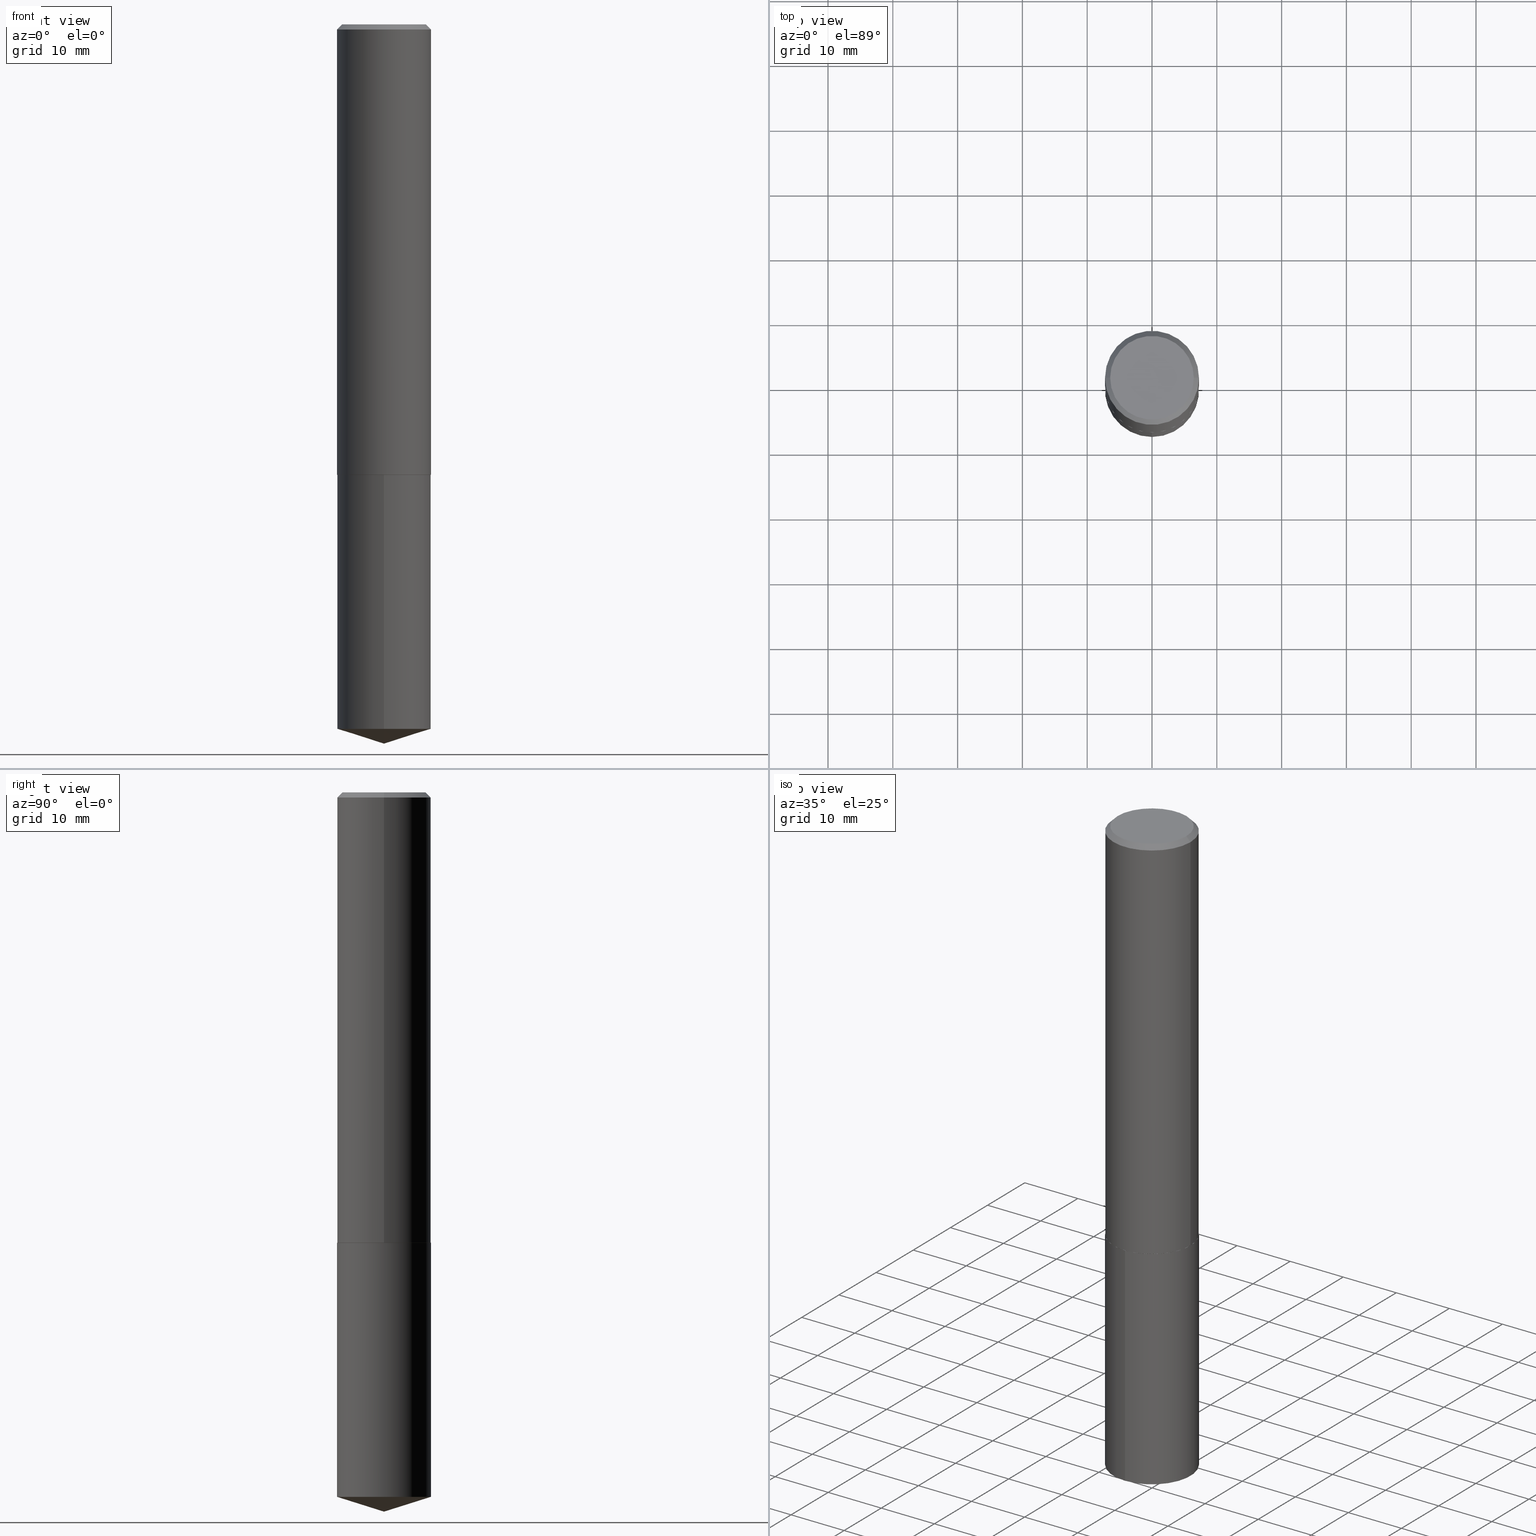
[diagram: canonical four-view strip — front | top / right | iso, engineering-drawing reading convention]
A machine part, canonical four-view strip (front | top / right | iso — engineering-drawing reading convention). The complete STEP part file that produces these views, byte-faithful:
ISO-10303-21;
HEADER;
FILE_DESCRIPTION (( 'STEP AP203' ),
    '1' );
FILE_NAME ('68611.STEP',
    '2024-04-23T13:19:27',
    ( '' ),
    ( '' ),
    'SwSTEP 2.0',
    'SolidWorks 2023',
    '' );
FILE_SCHEMA (( 'CONFIG_CONTROL_DESIGN' ));
ENDSEC;

DATA;
#1 = PERSON_AND_ORGANIZATION ( #80, #202 ) ;
#2 = DIRECTION ( 'NONE',  ( -2.445468806185136877E-29, 3.491481338843145188E-15, 1.000000000000000000 ) ) ;
#3 = DATE_TIME_ROLE ( 'creation_date' ) ;
#4 = EDGE_LOOP ( 'NONE', ( #9, #19, #51 ) ) ;
#5 = PERSON_AND_ORGANIZATION ( #80, #202 ) ;
#6 = LINE ( 'NONE', #125, #205 ) ;
#7 = COORDINATED_UNIVERSAL_TIME_OFFSET ( 5, 0, .BEHIND. ) ;
#8 = ORIENTED_EDGE ( 'NONE', *, *, #308, .F. ) ;
#9 = ORIENTED_EDGE ( 'NONE', *, *, #285, .F. ) ;
#10 = CARTESIAN_POINT ( 'NONE',  ( 6.691536294364390280E-29, -9.553740387476499873E-15, -2.736299999999999955 ) ) ;
#11 = CIRCLE ( 'NONE', #330, 0.2854500000000003146 ) ;
#12 = DIRECTION ( 'NONE',  ( -2.445468806185136597E-29, 3.491481338843145583E-15, 1.000000000000000000 ) ) ;
#13 = APPROVAL ( #27, 'UNSPECIFIED' ) ;
#14 = FACE_OUTER_BOUND ( 'NONE', #160, .T. ) ;
#15 = DIRECTION ( 'NONE',  ( 0.7071067811865452413, -7.319954787623248157E-15, -0.7071067811865497932 ) ) ;
#16 = DIRECTION ( 'NONE',  ( -2.445654948928403748E-29, 3.491214771840200006E-15, 1.000000000000000000 ) ) ;
#17 =( LENGTH_UNIT ( ) NAMED_UNIT ( * ) SI_UNIT ( $, .METRE. ) );
#18 = EDGE_CURVE ( 'NONE', #118, #180, #215, .T. ) ;
#19 = ORIENTED_EDGE ( 'NONE', *, *, #18, .T. ) ;
#20 =( CONVERSION_BASED_UNIT ( 'INCH', #52 ) LENGTH_UNIT ( ) NAMED_UNIT ( #264 ) );
#21 = EDGE_LOOP ( 'NONE', ( #182, #150, #38, #98 ) ) ;
#22 = LOCAL_TIME ( 9, 19, 27.00000000000000000, #34 ) ;
#23 = CARTESIAN_POINT ( 'NONE',  ( 7.642090019328602662E-31, -1.091087918388490267E-16, -0.03125000000000020817 ) ) ;
#24 = VERTEX_POINT ( 'NONE', #120 ) ;
#25 = ADVANCED_FACE ( 'NONE', ( #272 ), #225, .T. ) ;
#26 = DIRECTION ( 'NONE',  ( 2.445468806185136597E-29, -3.491481338843145583E-15, -1.000000000000000000 ) ) ;
#27 = APPROVAL_STATUS ( 'not_yet_approved' ) ;
#28 = AXIS2_PLACEMENT_3D ( 'NONE', #103, #254, #72 ) ;
#29 = CC_DESIGN_APPROVAL ( #13, ( #136 ) ) ;
#30 = ORIENTED_EDGE ( 'NONE', *, *, #223, .T. ) ;
#31 = PERSON_AND_ORGANIZATION ( #80, #202 ) ;
#32 = ORIENTED_EDGE ( 'NONE', *, *, #278, .T. ) ;
#33 = EDGE_CURVE ( 'NONE', #217, #259, #107, .T. ) ;
#34 = COORDINATED_UNIVERSAL_TIME_OFFSET ( 5, 0, .BEHIND. ) ;
#35 = CARTESIAN_POINT ( 'NONE',  ( 1.068776562497505041E-28, -1.525695767441885775E-14, -4.370099999999999874 ) ) ;
#36 = AXIS2_PLACEMENT_3D ( 'NONE', #371, #275, #343 ) ;
#37 = DIRECTION ( 'NONE',  ( 1.000000000000000000, -6.982962677686266711E-15, 4.876211886893936302E-29 ) ) ;
#38 = ORIENTED_EDGE ( 'NONE', *, *, #223, .F. ) ;
#39 = DIRECTION ( 'NONE',  ( 1.000000000000000000, -6.982962677686265922E-15, 0.000000000000000000 ) ) ;
#40 = DIRECTION ( 'NONE',  ( -2.445468806185136877E-29, 3.491481338843145188E-15, 1.000000000000000000 ) ) ;
#41 = CLOSED_SHELL ( 'NONE', ( #25, #256, #198, #110, #156, #213, #321, #246 ) ) ;
#42 = APPROVAL_PERSON_ORGANIZATION ( #274, #115, #304 ) ;
#43 = DIRECTION ( 'NONE',  ( -2.445654948928403748E-29, 3.491214771840200006E-15, 1.000000000000000000 ) ) ;
#44 = DIRECTION ( 'NONE',  ( -2.445468806185136597E-29, 3.491481338843145583E-15, 1.000000000000000000 ) ) ;
#45 = DIRECTION ( 'NONE',  ( -2.445468806185136597E-29, 3.491481338843145583E-15, 1.000000000000000000 ) ) ;
#46 = CONICAL_SURFACE ( 'NONE', #144, 0.2854499999999999815, 0.7853981633974450594 ) ;
#47 = CC_DESIGN_PERSON_AND_ORGANIZATION_ASSIGNMENT ( #1, #121, ( #303 ) ) ;
#48 = DIRECTION ( 'NONE',  ( -0.7071067811870787034, 7.493145998872274248E-15, 0.7071067811860163310 ) ) ;
#49 = ORIENTED_EDGE ( 'NONE', *, *, #334, .T. ) ;
#50 = LINE ( 'NONE', #293, #220 ) ;
#51 = ORIENTED_EDGE ( 'NONE', *, *, #362, .F. ) ;
#52 = LENGTH_MEASURE_WITH_UNIT ( LENGTH_MEASURE( 0.02539999999999999897 ), #17 );
#53 = ORIENTED_EDGE ( 'NONE', *, *, #355, .F. ) ;
#54 = CC_DESIGN_PERSON_AND_ORGANIZATION_ASSIGNMENT ( #149, #218, ( #126 ) ) ;
#55 = CIRCLE ( 'NONE', #151, 0.2849500000000004807 ) ;
#56 = CYLINDRICAL_SURFACE ( 'NONE', #232, 0.2854500000000001481 ) ;
#57 = CARTESIAN_POINT ( 'NONE',  ( -8.559838056064346583E-28, 1.221917133844405914E-13, 34.99997874015748067 ) ) ;
#58 = DATE_AND_TIME ( #245, #22 ) ;
#59 = CARTESIAN_POINT ( 'NONE',  ( -0.2854500000000001481, 2.028244239227207033E-15, -1.404110021513263625E-29 ) ) ;
#60 = VECTOR ( 'NONE', #40, 39.37007874015748143 ) ;
#61 = EDGE_CURVE ( 'NONE', #180, #328, #210, .T. ) ;
#62 = APPLICATION_PROTOCOL_DEFINITION ( 'international standard', 'config_control_design', 1994, #273 ) ;
#63 = DESIGN_CONTEXT ( 'detailed design', #273, 'design' ) ;
#64 = DIRECTION ( 'NONE',  ( 2.445468806185136597E-29, -3.491481338843145583E-15, -1.000000000000000000 ) ) ;
#65 = PERSON_AND_ORGANIZATION_ROLE ( 'creator' ) ;
#66 = EDGE_LOOP ( 'NONE', ( #93, #206, #32, #147 ) ) ;
#67 = ORIENTED_EDGE ( 'NONE', *, *, #316, .F. ) ;
#68 = CC_DESIGN_PERSON_AND_ORGANIZATION_ASSIGNMENT ( #269, #69, ( #303 ) ) ;
#69 = PERSON_AND_ORGANIZATION_ROLE ( 'creator' ) ;
#70 = AXIS2_PLACEMENT_3D ( 'NONE', #381, #45, #75 ) ;
#71 = ORIENTED_EDGE ( 'NONE', *, *, #33, .F. ) ;
#72 = DIRECTION ( 'NONE',  ( 1.000000000000000000, -6.982962677686265922E-15, 4.876176775795935793E-29 ) ) ;
#73 = FACE_OUTER_BOUND ( 'NONE', #91, .T. ) ;
#74 = ADVANCED_FACE ( 'NONE', ( #314 ), #100, .T. ) ;
#75 = DIRECTION ( 'NONE',  ( 1.000000000000000000, -6.982962677686265922E-15, 0.000000000000000000 ) ) ;
#76 = FACE_OUTER_BOUND ( 'NONE', #279, .T. ) ;
#77 = FACE_OUTER_BOUND ( 'NONE', #4, .T. ) ;
#78 = EDGE_CURVE ( 'NONE', #204, #159, #6, .T. ) ;
#79 = DIRECTION ( 'NONE',  ( 1.000000000000000000, -6.982962677686265133E-15, 0.000000000000000000 ) ) ;
#80 = PERSON ( 'UNSPECIFIED', 'UNSPECIFIED', 'UNSPECIFIED', ('UNSPECIFIED'), ('UNSPECIFIED'), ('UNSPECIFIED') ) ;
#81 = AXIS2_PLACEMENT_3D ( 'NONE', #190, #311, #37 ) ;
#82 = VECTOR ( 'NONE', #388, 39.37007874015748143 ) ;
#83 = FACE_OUTER_BOUND ( 'NONE', #368, .T. ) ;
#84 = DIRECTION ( 'NONE',  ( 1.000000000000000000, -6.982962677686267499E-15, 0.000000000000000000 ) ) ;
#85 = ORIENTED_EDGE ( 'NONE', *, *, #161, .T. ) ;
#86 = DIRECTION ( 'NONE',  ( -2.445468806185136597E-29, 3.491481338843145583E-15, 1.000000000000000000 ) ) ;
#87 = CIRCLE ( 'NONE', #81, 0.2541999999999999815 ) ;
#88 =( GEOMETRIC_REPRESENTATION_CONTEXT ( 3 ) GLOBAL_UNCERTAINTY_ASSIGNED_CONTEXT ( ( #345 ) ) GLOBAL_UNIT_ASSIGNED_CONTEXT ( ( #20, #143, #363 ) ) REPRESENTATION_CONTEXT ( 'NONE', 'WORKASPACE' ) );
#89 = DIRECTION ( 'NONE',  ( -6.982962677686265133E-15, -1.000000000000000000, 3.500519750498698121E-15 ) ) ;
#90 = CARTESIAN_POINT ( 'NONE',  ( 0.000000000000000000, 0.000000000000000000, 0.000000000000000000 ) ) ;
#91 = EDGE_LOOP ( 'NONE', ( #294, #67 ) ) ;
#92 = EDGE_CURVE ( 'NONE', #259, #217, #87, .T. ) ;
#93 = ORIENTED_EDGE ( 'NONE', *, *, #61, .F. ) ;
#94 = CC_DESIGN_SECURITY_CLASSIFICATION ( #338, ( #303 ) ) ;
#95 = PERSON_AND_ORGANIZATION_ROLE ( 'classification_officer' ) ;
#96 = CC_DESIGN_APPROVAL ( #115, ( #338 ) ) ;
#97 = VERTEX_POINT ( 'NONE', #336 ) ;
#98 = ORIENTED_EDGE ( 'NONE', *, *, #132, .F. ) ;
#99 = DIRECTION ( 'NONE',  ( 0.000000000000000000, 0.000000000000000000, 1.000000000000000000 ) ) ;
#100 = CYLINDRICAL_SURFACE ( 'NONE', #36, 0.2854499999999999815 ) ;
#101 = AXIS2_PLACEMENT_3D ( 'NONE', #146, #201, #171 ) ;
#102 = PLANE ( 'NONE',  #365 ) ;
#103 = CARTESIAN_POINT ( 'NONE',  ( 1.035524803460187563E-28, -4.307096649934111899E-15, -2.736299999999999510 ) ) ;
#104 = EDGE_CURVE ( 'NONE', #300, #24, #219, .T. ) ;
#105 = CARTESIAN_POINT ( 'NONE',  ( 6.691536294364390280E-29, -9.553740387476499873E-15, -2.736299999999999955 ) ) ;
#106 = CARTESIAN_POINT ( 'NONE',  ( 0.2854499999999999815, -2.102395488184393662E-15, -0.03125000000000020817 ) ) ;
#107 = CIRCLE ( 'NONE', #347, 0.2541999999999999815 ) ;
#108 = CIRCLE ( 'NONE', #70, 0.2854499999999999815 ) ;
#109 = CARTESIAN_POINT ( 'NONE',  ( 0.2849500000000004807, -1.154353560248320143E-14, -2.736299999999999066 ) ) ;
#110 = ADVANCED_FACE ( 'NONE', ( #73 ), #250, .F. ) ;
#111 = LINE ( 'NONE', #261, #226 ) ;
#112 = ORIENTED_EDGE ( 'NONE', *, *, #308, .T. ) ;
#113 = ORIENTED_EDGE ( 'NONE', *, *, #61, .T. ) ;
#114 = FACE_OUTER_BOUND ( 'NONE', #21, .T. ) ;
#115 = APPROVAL ( #181, 'UNSPECIFIED' ) ;
#116 = CIRCLE ( 'NONE', #367, 0.2849500000000004807 ) ;
#117 = APPROVAL_DATE_TIME ( #390, #115 ) ;
#118 = VERTEX_POINT ( 'NONE', #281 ) ;
#119 = EDGE_CURVE ( 'NONE', #328, #97, #282, .T. ) ;
#120 = CARTESIAN_POINT ( 'NONE',  ( -0.2854499999999999815, -2.802307480095755519E-15, -0.03125000000000020817 ) ) ;
#121 = PERSON_AND_ORGANIZATION_ROLE ( 'design_supplier' ) ;
#122 = VERTEX_POINT ( 'NONE', #106 ) ;
#123 = VECTOR ( 'NONE', #155, 39.37007874015748143 ) ;
#124 = ADVANCED_FACE ( 'NONE', ( #162 ), #379, .T. ) ;
#125 = CARTESIAN_POINT ( 'NONE',  ( 0.2854500000000003146, -1.154528134315262530E-14, -2.735799999999999788 ) ) ;
#126 = PRODUCT ( '68611', '68611', '', ( #339 ) ) ;
#127 = DIRECTION ( 'NONE',  ( -2.445468806185136597E-29, 3.491481338843145583E-15, 1.000000000000000000 ) ) ;
#128 = PLANE ( 'NONE',  #196 ) ;
#129 = CIRCLE ( 'NONE', #231, 0.2854499999999999815 ) ;
#130 = VECTOR ( 'NONE', #208, 39.37007874015748143 ) ;
#131 = CARTESIAN_POINT ( 'NONE',  ( 0.2854500000000003146, -1.154528134315262530E-14, -2.735799999999999788 ) ) ;
#132 = EDGE_CURVE ( 'NONE', #159, #122, #194, .T. ) ;
#133 = ADVANCED_BREP_SHAPE_REPRESENTATION ( '68611', ( #382, #384, #177 ), #88 ) ;
#134 = DIRECTION ( 'NONE',  ( 1.000000000000000000, -6.982962677686265922E-15, 4.876176775795936353E-29 ) ) ;
#135 = DIRECTION ( 'NONE',  ( 2.445654948928403468E-29, -3.491214771840200006E-15, -1.000000000000000000 ) ) ;
#136 = PRODUCT_DEFINITION ( 'UNKNOWN', '', #303, #63 ) ;
#137 = CARTESIAN_POINT ( 'NONE',  ( 0.000000000000000000, 0.000000000000000000, 0.000000000000000000 ) ) ;
#138 = AXIS2_PLACEMENT_3D ( 'NONE', #228, #375, #291 ) ;
#139 = AXIS2_PLACEMENT_3D ( 'NONE', #137, #12, #134 ) ;
#140 = CARTESIAN_POINT ( 'NONE',  ( 6.690313559961295236E-29, -9.551994646807077580E-15, -2.735799999999999788 ) ) ;
#141 = DIRECTION ( 'NONE',  ( 1.000000000000000000, -6.982962677686265922E-15, 4.876176775795936353E-29 ) ) ;
#142 = ORIENTED_EDGE ( 'NONE', *, *, #78, .T. ) ;
#143 =( NAMED_UNIT ( * ) PLANE_ANGLE_UNIT ( ) SI_UNIT ( $, .RADIAN. ) );
#144 = AXIS2_PLACEMENT_3D ( 'NONE', #23, #26, #255 ) ;
#145 = ADVANCED_FACE ( 'NONE', ( #14 ), #102, .F. ) ;
#146 = CARTESIAN_POINT ( 'NONE',  ( 1.046713341713137297E-28, -1.494347063265972236E-14, -4.280097960714495109 ) ) ;
#147 = ORIENTED_EDGE ( 'NONE', *, *, #119, .F. ) ;
#148 = APPLICATION_CONTEXT ( 'configuration controlled 3d designs of mechanical parts and assemblies' ) ;
#149 = PERSON_AND_ORGANIZATION ( #80, #202 ) ;
#150 = ORIENTED_EDGE ( 'NONE', *, *, #104, .T. ) ;
#151 = AXIS2_PLACEMENT_3D ( 'NONE', #168, #222, #356 ) ;
#152 = APPROVAL_DATE_TIME ( #310, #13 ) ;
#153 = EDGE_LOOP ( 'NONE', ( #188, #174 ) ) ;
#154 = COORDINATED_UNIVERSAL_TIME_OFFSET ( 5, 0, .BEHIND. ) ;
#155 = DIRECTION ( 'NONE',  ( 6.776566513254257349E-15, 0.9537169507482289310, 0.3007057995042667353 ) ) ;
#156 = ADVANCED_FACE ( 'NONE', ( #76 ), #359, .T. ) ;
#157 = DIRECTION ( 'NONE',  ( -1.000000000000000000, 6.982962677686265922E-15, 0.000000000000000000 ) ) ;
#158 = SECURITY_CLASSIFICATION_LEVEL ( 'unclassified' ) ;
#159 = VERTEX_POINT ( 'NONE', #131 ) ;
#160 = EDGE_LOOP ( 'NONE', ( #85, #244 ) ) ;
#161 = EDGE_CURVE ( 'NONE', #97, #328, #129, .T. ) ;
#162 = FACE_OUTER_BOUND ( 'NONE', #211, .T. ) ;
#163 = CIRCLE ( 'NONE', #313, 0.2854499999999999815 ) ;
#164 = APPROVAL_PERSON_ORGANIZATION ( #335, #13, #216 ) ;
#165 = FACE_OUTER_BOUND ( 'NONE', #209, .T. ) ;
#166 = CARTESIAN_POINT ( 'NONE',  ( -2.066436526677436908E-47, 2.950323697668913920E-33, 8.450062914116742878E-19 ) ) ;
#167 = EDGE_CURVE ( 'NONE', #24, #122, #163, .T. ) ;
#168 = CARTESIAN_POINT ( 'NONE',  ( 6.691536294364386916E-29, -9.553740387476496717E-15, -2.736299999999999066 ) ) ;
#169 = FACE_OUTER_BOUND ( 'NONE', #153, .T. ) ;
#170 = CIRCLE ( 'NONE', #101, 0.2854499999999999815 ) ;
#171 = DIRECTION ( 'NONE',  ( -6.982962677686265922E-15, -1.000000000000000000, 3.828128209723963046E-15 ) ) ;
#172 = ORIENTED_EDGE ( 'NONE', *, *, #78, .F. ) ;
#173 = CARTESIAN_POINT ( 'NONE',  ( 0.000000000000000000, 0.000000000000000000, 0.000000000000000000 ) ) ;
#174 = ORIENTED_EDGE ( 'NONE', *, *, #33, .T. ) ;
#175 = FACE_OUTER_BOUND ( 'NONE', #333, .T. ) ;
#176 = ORIENTED_EDGE ( 'NONE', *, *, #362, .T. ) ;
#177 = AXIS2_PLACEMENT_3D ( 'NONE', #90, #99, #271 ) ;
#178 = CARTESIAN_POINT ( 'NONE',  ( -0.2849500000000004807, -7.526399634753978988E-15, -2.736299999999999066 ) ) ;
#179 = CARTESIAN_POINT ( 'NONE',  ( 6.690313559961295236E-29, -9.551994646807077580E-15, -2.735799999999999788 ) ) ;
#180 = VERTEX_POINT ( 'NONE', #224 ) ;
#181 = APPROVAL_STATUS ( 'not_yet_approved' ) ;
#182 = ORIENTED_EDGE ( 'NONE', *, *, #289, .T. ) ;
#183 = AXIS2_PLACEMENT_3D ( 'NONE', #352, #199, #286 ) ;
#184 = LOCAL_TIME ( 9, 19, 27.00000000000000000, #7 ) ;
#185 = APPROVAL_STATUS ( 'not_yet_approved' ) ;
#186 = ORIENTED_EDGE ( 'NONE', *, *, #350, .T. ) ;
#187 = APPROVAL_ROLE ( '' ) ;
#188 = ORIENTED_EDGE ( 'NONE', *, *, #92, .T. ) ;
#189 = CALENDAR_DATE ( 2024, 23, 4 ) ;
#190 = CARTESIAN_POINT ( 'NONE',  ( -4.132873053354873817E-47, 5.900647395337827841E-33, 1.690012582823348576E-18 ) ) ;
#191 = CIRCLE ( 'NONE', #267, 0.2854500000000003146 ) ;
#192 = ORIENTED_EDGE ( 'NONE', *, *, #18, .F. ) ;
#193 = EDGE_CURVE ( 'NONE', #204, #280, #55, .T. ) ;
#194 = LINE ( 'NONE', #315, #60 ) ;
#195 = FACE_OUTER_BOUND ( 'NONE', #297, .T. ) ;
#196 = AXIS2_PLACEMENT_3D ( 'NONE', #166, #354, #248 ) ;
#197 = CARTESIAN_POINT ( 'NONE',  ( 6.691536294364390280E-29, -9.553740387476499873E-15, -2.736299999999999955 ) ) ;
#198 = ADVANCED_FACE ( 'NONE', ( #165 ), #277, .T. ) ;
#199 = DIRECTION ( 'NONE',  ( -2.445468806185136597E-29, 3.491481338843145583E-15, 1.000000000000000000 ) ) ;
#200 = CARTESIAN_POINT ( 'NONE',  ( -8.559838056064346583E-28, 1.221917133844405914E-13, 34.99997874015748067 ) ) ;
#201 = DIRECTION ( 'NONE',  ( -2.445654948928403748E-29, 3.491214771840200006E-15, 1.000000000000000000 ) ) ;
#202 = ORGANIZATION ( 'UNSPECIFIED', 'UNSPECIFIED', '' ) ;
#203 = LINE ( 'NONE', #234, #130 ) ;
#204 = VERTEX_POINT ( 'NONE', #109 ) ;
#205 = VECTOR ( 'NONE', #372, 39.37007874015748143 ) ;
#206 = ORIENTED_EDGE ( 'NONE', *, *, #355, .T. ) ;
#207 = EDGE_CURVE ( 'NONE', #217, #122, #351, .T. ) ;
#208 = DIRECTION ( 'NONE',  ( -2.445654948928403468E-29, 3.491214771840200006E-15, 1.000000000000000000 ) ) ;
#209 = EDGE_LOOP ( 'NONE', ( #364, #49, #238, #172 ) ) ;
#210 = LINE ( 'NONE', #374, #329 ) ;
#211 = EDGE_LOOP ( 'NONE', ( #176, #113, #387, #305 ) ) ;
#212 = AXIS2_PLACEMENT_3D ( 'NONE', #200, #43, #380 ) ;
#213 = ADVANCED_FACE ( 'NONE', ( #195 ), #252, .T. ) ;
#214 = COORDINATED_UNIVERSAL_TIME_OFFSET ( 5, 0, .BEHIND. ) ;
#215 = LINE ( 'NONE', #35, #123 ) ;
#216 = APPROVAL_ROLE ( '' ) ;
#217 = VERTEX_POINT ( 'NONE', #322 ) ;
#218 = PERSON_AND_ORGANIZATION_ROLE ( 'design_owner' ) ;
#219 = LINE ( 'NONE', #59, #312 ) ;
#220 = VECTOR ( 'NONE', #48, 39.37007874015748143 ) ;
#221 = DIRECTION ( 'NONE',  ( -2.445654948928403748E-29, 3.491214771840200006E-15, 1.000000000000000000 ) ) ;
#222 = DIRECTION ( 'NONE',  ( -2.445468806185136597E-29, 3.491481338843145583E-15, 1.000000000000000000 ) ) ;
#223 = EDGE_CURVE ( 'NONE', #122, #24, #108, .T. ) ;
#224 = CARTESIAN_POINT ( 'NONE',  ( 2.028244239227311162E-15, 0.2854499999999851600, -4.280097960714495997 ) ) ;
#225 = CONICAL_SURFACE ( 'NONE', #276, 0.2854499999999999815, 0.7853981633974450594 ) ;
#226 = VECTOR ( 'NONE', #383, 39.37007874015748854 ) ;
#227 = DIRECTION ( 'NONE',  ( -2.445654948928403748E-29, 3.491214771840200006E-15, 1.000000000000000000 ) ) ;
#228 = CARTESIAN_POINT ( 'NONE',  ( 6.691536294364390280E-29, -9.553740387476499873E-15, -2.736299999999999955 ) ) ;
#229 = CARTESIAN_POINT ( 'NONE',  ( 2.028244239227311162E-15, 0.2854499999999904891, -2.736300000000001287 ) ) ;
#230 = DIRECTION ( 'NONE',  ( -2.445654948928403748E-29, 3.491214771840200006E-15, 1.000000000000000000 ) ) ;
#231 = AXIS2_PLACEMENT_3D ( 'NONE', #105, #221, #378 ) ;
#232 = AXIS2_PLACEMENT_3D ( 'NONE', #173, #389, #141 ) ;
#233 = CC_DESIGN_PERSON_AND_ORGANIZATION_ASSIGNMENT ( #5, #65, ( #136 ) ) ;
#234 = CARTESIAN_POINT ( 'NONE',  ( -1.993286696345477508E-15, -0.2854500000000095294, -2.736299999999999066 ) ) ;
#235 = AXIS2_PLACEMENT_3D ( 'NONE', #319, #349, #287 ) ;
#236 = ORIENTED_EDGE ( 'NONE', *, *, #350, .F. ) ;
#237 = CALENDAR_DATE ( 2024, 23, 4 ) ;
#238 = ORIENTED_EDGE ( 'NONE', *, *, #289, .F. ) ;
#239 = ADVANCED_FACE ( 'NONE', ( #77 ), #290, .T. ) ;
#240 = PRODUCT_DEFINITION_SHAPE ( 'NONE', 'NONE',  #136 ) ;
#241 = SHAPE_DEFINITION_REPRESENTATION ( #240, #133 ) ;
#242 = DIRECTION ( 'NONE',  ( -2.445654948928403468E-29, 3.491214771840200006E-15, 1.000000000000000000 ) ) ;
#243 = CALENDAR_DATE ( 2024, 23, 4 ) ;
#244 = ORIENTED_EDGE ( 'NONE', *, *, #119, .T. ) ;
#245 = CALENDAR_DATE ( 2024, 23, 4 ) ;
#246 = ADVANCED_FACE ( 'NONE', ( #169 ), #128, .F. ) ;
#247 = DIRECTION ( 'NONE',  ( 1.000000000000000000, -6.982962677686266711E-15, 4.876211886893936302E-29 ) ) ;
#248 = DIRECTION ( 'NONE',  ( -1.000000000000000000, 6.982962677686265922E-15, -4.876176775795935793E-29 ) ) ;
#249 = LOCAL_TIME ( 9, 19, 27.00000000000000000, #214 ) ;
#250 = PLANE ( 'NONE',  #28 ) ;
#251 = DIRECTION ( 'NONE',  ( -6.982962677686265922E-15, -1.000000000000000000, 3.828128209723963046E-15 ) ) ;
#252 = CYLINDRICAL_SURFACE ( 'NONE', #139, 0.2854500000000001481 ) ;
#253 = VECTOR ( 'NONE', #15, 39.37007874015748143 ) ;
#254 = DIRECTION ( 'NONE',  ( -2.438088387897960049E-29, 3.491481338843145188E-15, 1.000000000000000000 ) ) ;
#255 = DIRECTION ( 'NONE',  ( -1.000000000000000000, 6.982962677686265922E-15, 0.000000000000000000 ) ) ;
#256 = ADVANCED_FACE ( 'NONE', ( #114 ), #56, .T. ) ;
#257 = DIRECTION ( 'NONE',  ( -2.445468806185136597E-29, 3.491481338843145583E-15, 1.000000000000000000 ) ) ;
#258 = LOCAL_TIME ( 9, 19, 27.00000000000000000, #154 ) ;
#259 = VERTEX_POINT ( 'NONE', #357 ) ;
#260 = APPROVAL ( #185, 'UNSPECIFIED' ) ;
#261 = CARTESIAN_POINT ( 'NONE',  ( 1.068673800753521436E-28, -1.525841648899917748E-14, -4.370099999999999874 ) ) ;
#262 = VERTEX_POINT ( 'NONE', #332 ) ;
#263 = APPLICATION_PROTOCOL_DEFINITION ( 'international standard', 'config_control_design', 1994, #148 ) ;
#264 = DIMENSIONAL_EXPONENTS ( 1.000000000000000000, 0.000000000000000000, 0.000000000000000000, 0.000000000000000000, 0.000000000000000000, 0.000000000000000000, 0.000000000000000000 ) ;
#265 = APPROVAL_DATE_TIME ( #301, #260 ) ;
#266 = ORIENTED_EDGE ( 'NONE', *, *, #92, .F. ) ;
#267 = AXIS2_PLACEMENT_3D ( 'NONE', #179, #257, #84 ) ;
#268 = CC_DESIGN_DATE_AND_TIME_ASSIGNMENT ( #58, #373, ( #338 ) ) ;
#269 = PERSON_AND_ORGANIZATION ( #80, #202 ) ;
#270 = CARTESIAN_POINT ( 'NONE',  ( 7.642090019328602662E-31, -1.091087918388490267E-16, -0.03125000000000020817 ) ) ;
#271 = DIRECTION ( 'NONE',  ( 1.000000000000000000, 0.000000000000000000, 0.000000000000000000 ) ) ;
#272 = FACE_OUTER_BOUND ( 'NONE', #358, .T. ) ;
#273 = APPLICATION_CONTEXT ( 'configuration controlled 3d designs of mechanical parts and assemblies' ) ;
#274 = PERSON_AND_ORGANIZATION ( #80, #202 ) ;
#275 = DIRECTION ( 'NONE',  ( -2.445654948928403748E-29, 3.491214771840200006E-15, 1.000000000000000000 ) ) ;
#276 = AXIS2_PLACEMENT_3D ( 'NONE', #270, #64, #157 ) ;
#277 = CONICAL_SURFACE ( 'NONE', #235, 0.2854500000000003146, 0.7853981633981995669 ) ;
#278 = EDGE_CURVE ( 'NONE', #262, #97, #203, .T. ) ;
#279 = EDGE_LOOP ( 'NONE', ( #361, #307, #142, #236 ) ) ;
#280 = VERTEX_POINT ( 'NONE', #178 ) ;
#281 = CARTESIAN_POINT ( 'NONE',  ( 1.068775669231201710E-28, -1.525695767441885775E-14, -4.370099999999999874 ) ) ;
#282 = CIRCLE ( 'NONE', #288, 0.2854499999999999815 ) ;
#283 = CC_DESIGN_APPROVAL ( #260, ( #303 ) ) ;
#284 = CARTESIAN_POINT ( 'NONE',  ( 0.2854499999999999815, -2.067437945302732768E-15, -0.03125000000000020817 ) ) ;
#285 = EDGE_CURVE ( 'NONE', #118, #262, #111, .T. ) ;
#286 = DIRECTION ( 'NONE',  ( 1.000000000000000000, -6.982962677686267499E-15, 0.000000000000000000 ) ) ;
#287 = DIRECTION ( 'NONE',  ( 1.000000000000000000, -6.982962677686267499E-15, 0.000000000000000000 ) ) ;
#288 = AXIS2_PLACEMENT_3D ( 'NONE', #197, #227, #251 ) ;
#289 = EDGE_CURVE ( 'NONE', #159, #300, #11, .T. ) ;
#290 = CONICAL_SURFACE ( 'NONE', #212, 124.8659371009152892, 1.265363707695892126 ) ;
#291 = DIRECTION ( 'NONE',  ( -6.982962677686265922E-15, -1.000000000000000000, 3.828128209723963046E-15 ) ) ;
#292 = ORIENTED_EDGE ( 'NONE', *, *, #132, .T. ) ;
#293 = CARTESIAN_POINT ( 'NONE',  ( -0.2854500000000003146, -7.523750407579868575E-15, -2.735799999999999788 ) ) ;
#294 = ORIENTED_EDGE ( 'NONE', *, *, #193, .F. ) ;
#295 = CLOSED_SHELL ( 'NONE', ( #124, #239, #327, #74, #145 ) ) ;
#296 = LINE ( 'NONE', #298, #82 ) ;
#297 = EDGE_LOOP ( 'NONE', ( #337, #186, #292, #302 ) ) ;
#298 = CARTESIAN_POINT ( 'NONE',  ( -0.2854499999999999815, 1.884177904506695461E-15, -0.03125000000000020817 ) ) ;
#299 = PERSON_AND_ORGANIZATION ( #80, #202 ) ;
#300 = VERTEX_POINT ( 'NONE', #366 ) ;
#301 = DATE_AND_TIME ( #189, #318 ) ;
#302 = ORIENTED_EDGE ( 'NONE', *, *, #167, .F. ) ;
#303 = PRODUCT_DEFINITION_FORMATION_WITH_SPECIFIED_SOURCE ( 'ANY', '', #126, .NOT_KNOWN. ) ;
#304 = APPROVAL_ROLE ( '' ) ;
#305 = ORIENTED_EDGE ( 'NONE', *, *, #278, .F. ) ;
#306 = COORDINATED_UNIVERSAL_TIME_OFFSET ( 5, 0, .BEHIND. ) ;
#307 = ORIENTED_EDGE ( 'NONE', *, *, #316, .T. ) ;
#308 = EDGE_CURVE ( 'NONE', #259, #24, #296, .T. ) ;
#309 = PRODUCT_RELATED_PRODUCT_CATEGORY ( 'detail', '', ( #126 ) ) ;
#310 = DATE_AND_TIME ( #344, #184 ) ;
#311 = DIRECTION ( 'NONE',  ( -2.445468806185136597E-29, 3.491481338843145583E-15, 1.000000000000000000 ) ) ;
#312 = VECTOR ( 'NONE', #2, 39.37007874015748143 ) ;
#313 = AXIS2_PLACEMENT_3D ( 'NONE', #317, #44, #39 ) ;
#314 = FACE_OUTER_BOUND ( 'NONE', #66, .T. ) ;
#315 = CARTESIAN_POINT ( 'NONE',  ( 0.2854500000000001481, -1.993286696345545744E-15, 1.391904660650950803E-29 ) ) ;
#316 = EDGE_CURVE ( 'NONE', #280, #204, #116, .T. ) ;
#317 = CARTESIAN_POINT ( 'NONE',  ( 7.642090019328602662E-31, -1.091087918388490267E-16, -0.03125000000000020817 ) ) ;
#318 = LOCAL_TIME ( 9, 19, 27.00000000000000000, #306 ) ;
#319 = CARTESIAN_POINT ( 'NONE',  ( 6.690313559961295236E-29, -9.551994646807077580E-15, -2.735799999999999788 ) ) ;
#320 = DIRECTION ( 'NONE',  ( 6.982962677686265922E-15, 1.000000000000000000, -3.491214771840200006E-15 ) ) ;
#321 = ADVANCED_FACE ( 'NONE', ( #83 ), #46, .T. ) ;
#322 = CARTESIAN_POINT ( 'NONE',  ( 0.2541999999999999815, -1.905688268168128037E-15, 1.690012582836218602E-18 ) ) ;
#323 = AXIS2_PLACEMENT_3D ( 'NONE', #57, #230, #89 ) ;
#324 = CARTESIAN_POINT ( 'NONE',  ( 1.046713341713137297E-28, -1.494347063265972236E-14, -4.280097960714495109 ) ) ;
#325 = CARTESIAN_POINT ( 'NONE',  ( 6.691536294364386916E-29, -9.553740387476496717E-15, -2.736299999999999066 ) ) ;
#326 = ORIENTED_EDGE ( 'NONE', *, *, #207, .F. ) ;
#327 = ADVANCED_FACE ( 'NONE', ( #175 ), #348, .T. ) ;
#328 = VERTEX_POINT ( 'NONE', #229 ) ;
#329 = VECTOR ( 'NONE', #242, 39.37007874015748143 ) ;
#330 = AXIS2_PLACEMENT_3D ( 'NONE', #140, #360, #385 ) ;
#331 = ORIENTED_EDGE ( 'NONE', *, *, #167, .T. ) ;
#332 = CARTESIAN_POINT ( 'NONE',  ( -1.993286696345440432E-15, -0.2854500000000150250, -4.280097960714494221 ) ) ;
#333 = EDGE_LOOP ( 'NONE', ( #192, #346, #53 ) ) ;
#334 = EDGE_CURVE ( 'NONE', #280, #300, #50, .T. ) ;
#335 = PERSON_AND_ORGANIZATION ( #80, #202 ) ;
#336 = CARTESIAN_POINT ( 'NONE',  ( -1.993286696345477508E-15, -0.2854500000000095294, -2.736299999999999066 ) ) ;
#337 = ORIENTED_EDGE ( 'NONE', *, *, #104, .F. ) ;
#338 = SECURITY_CLASSIFICATION ( '', '', #158 ) ;
#339 = MECHANICAL_CONTEXT ( 'NONE', #148, 'mechanical' ) ;
#340 = CC_DESIGN_DATE_AND_TIME_ASSIGNMENT ( #342, #3, ( #136 ) ) ;
#341 = CARTESIAN_POINT ( 'NONE',  ( -4.132873053354873817E-47, 5.900647395337827841E-33, 1.690012582823348576E-18 ) ) ;
#342 = DATE_AND_TIME ( #243, #249 ) ;
#343 = DIRECTION ( 'NONE',  ( -6.982962677686265922E-15, -1.000000000000000000, 3.828128209723963046E-15 ) ) ;
#344 = CALENDAR_DATE ( 2024, 23, 4 ) ;
#345 = UNCERTAINTY_MEASURE_WITH_UNIT (LENGTH_MEASURE( 1.000000000000000082E-05 ), #20, 'distance_accuracy_value', 'NONE');
#346 = ORIENTED_EDGE ( 'NONE', *, *, #285, .T. ) ;
#347 = AXIS2_PLACEMENT_3D ( 'NONE', #341, #127, #247 ) ;
#348 = CONICAL_SURFACE ( 'NONE', #323, 124.8659371009152892, 1.265363707695892126 ) ;
#349 = DIRECTION ( 'NONE',  ( -2.445468806185136597E-29, 3.491481338843145583E-15, 1.000000000000000000 ) ) ;
#350 = EDGE_CURVE ( 'NONE', #300, #159, #191, .T. ) ;
#351 = LINE ( 'NONE', #284, #253 ) ;
#352 = CARTESIAN_POINT ( 'NONE',  ( 6.690313559961295236E-29, -9.551994646807077580E-15, -2.735799999999999788 ) ) ;
#353 = AXIS2_PLACEMENT_3D ( 'NONE', #324, #16, #386 ) ;
#354 = DIRECTION ( 'NONE',  ( 2.438088387897960049E-29, -3.491481338843145188E-15, -1.000000000000000000 ) ) ;
#355 = EDGE_CURVE ( 'NONE', #180, #262, #170, .T. ) ;
#356 = DIRECTION ( 'NONE',  ( 1.000000000000000000, -6.982962677686265133E-15, 0.000000000000000000 ) ) ;
#357 = CARTESIAN_POINT ( 'NONE',  ( -0.2541999999999999815, 1.829623508587272093E-15, 1.690012582810744134E-18 ) ) ;
#358 = EDGE_LOOP ( 'NONE', ( #71, #369, #30, #8 ) ) ;
#359 = CONICAL_SURFACE ( 'NONE', #183, 0.2854500000000003146, 0.7853981633981995669 ) ;
#360 = DIRECTION ( 'NONE',  ( -2.445468806185136597E-29, 3.491481338843145583E-15, 1.000000000000000000 ) ) ;
#361 = ORIENTED_EDGE ( 'NONE', *, *, #334, .F. ) ;
#362 = EDGE_CURVE ( 'NONE', #262, #180, #377, .T. ) ;
#363 =( NAMED_UNIT ( * ) SI_UNIT ( $, .STERADIAN. ) SOLID_ANGLE_UNIT ( ) );
#364 = ORIENTED_EDGE ( 'NONE', *, *, #193, .T. ) ;
#365 = AXIS2_PLACEMENT_3D ( 'NONE', #10, #135, #320 ) ;
#366 = CARTESIAN_POINT ( 'NONE',  ( -0.2854500000000003146, -7.523750407579868575E-15, -2.735799999999999788 ) ) ;
#367 = AXIS2_PLACEMENT_3D ( 'NONE', #325, #86, #79 ) ;
#368 = EDGE_LOOP ( 'NONE', ( #326, #266, #112, #331 ) ) ;
#369 = ORIENTED_EDGE ( 'NONE', *, *, #207, .T. ) ;
#370 = APPROVAL_PERSON_ORGANIZATION ( #31, #260, #187 ) ;
#371 = CARTESIAN_POINT ( 'NONE',  ( 6.691536294364390280E-29, -9.553740387476499873E-15, -2.736299999999999955 ) ) ;
#372 = DIRECTION ( 'NONE',  ( 0.7071067811870787034, -2.468850131087820502E-15, 0.7071067811860163310 ) ) ;
#373 = DATE_TIME_ROLE ( 'classification_date' ) ;
#374 = CARTESIAN_POINT ( 'NONE',  ( 2.028244239227272508E-15, 0.2854499999999904336, -2.736300000000001287 ) ) ;
#375 = DIRECTION ( 'NONE',  ( -2.445654948928403748E-29, 3.491214771840200006E-15, 1.000000000000000000 ) ) ;
#376 = CC_DESIGN_PERSON_AND_ORGANIZATION_ASSIGNMENT ( #299, #95, ( #338 ) ) ;
#377 = CIRCLE ( 'NONE', #353, 0.2854499999999999815 ) ;
#378 = DIRECTION ( 'NONE',  ( -6.982962677686265922E-15, -1.000000000000000000, 3.828128209723963046E-15 ) ) ;
#379 = CYLINDRICAL_SURFACE ( 'NONE', #138, 0.2854499999999999815 ) ;
#380 = DIRECTION ( 'NONE',  ( -6.982962677686265133E-15, -1.000000000000000000, 3.500519750498698121E-15 ) ) ;
#381 = CARTESIAN_POINT ( 'NONE',  ( 7.642090019328602662E-31, -1.091087918388490267E-16, -0.03125000000000020817 ) ) ;
#382 = MANIFOLD_SOLID_BREP ( 'Body-Move/Copy2[1]', #295 ) ;
#383 = DIRECTION ( 'NONE',  ( -6.659769872151632089E-15, -0.9537169507482267106, 0.3007057995042733411 ) ) ;
#384 = MANIFOLD_SOLID_BREP ( 'Body-Move/Copy2[2]', #41 ) ;
#385 = DIRECTION ( 'NONE',  ( 1.000000000000000000, -6.982962677686267499E-15, 0.000000000000000000 ) ) ;
#386 = DIRECTION ( 'NONE',  ( -6.982962677686265922E-15, -1.000000000000000000, 3.828128209723963046E-15 ) ) ;
#387 = ORIENTED_EDGE ( 'NONE', *, *, #161, .F. ) ;
#388 = DIRECTION ( 'NONE',  ( -0.7071067811865452413, 2.468850131082233000E-15, -0.7071067811865497932 ) ) ;
#389 = DIRECTION ( 'NONE',  ( -2.445468806185136597E-29, 3.491481338843145583E-15, 1.000000000000000000 ) ) ;
#390 = DATE_AND_TIME ( #237, #258 ) ;
ENDSEC;
END-ISO-10303-21;
